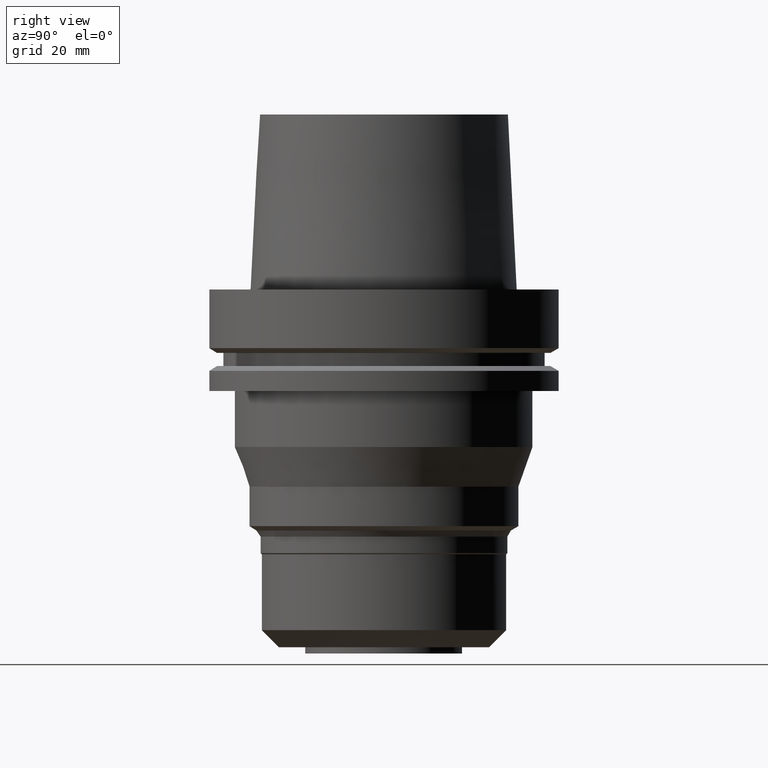
[diagram: clean part render]
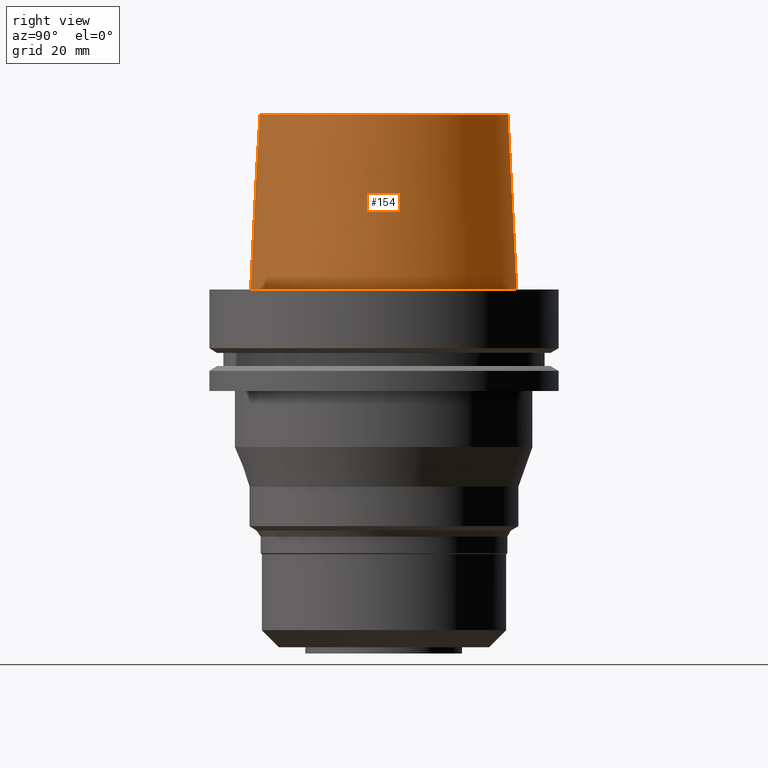
[diagram: same view with one face highlighted and labeled with its STEP entity id]
A machine part, right view. The second image highlights one B-rep face of the part: STEP entity #154.
In plain terms, the highlighted conical surface has half-angle 2.862 deg.
Its self-contained STEP definition (entity closure, byte-faithful):
#108=EDGE_CURVE('Unnamed[1]',#261,#261,#262,.T.);
#147=EDGE_CURVE('Unnamed[1]',#323,#323,#324,.T.);
#154=ADVANCED_FACE('Unnamed[1]',(#333,#334),#335,.T.);
#261=VERTEX_POINT('',#463);
#262=CIRCLE('',#464,37.9999999999349);
#323=VERTEX_POINT('',#540);
#324=CIRCLE('',#541,35.5000000015618);
#333=FACE_BOUND('',#553,.T.);
#334=FACE_BOUND('',#554,.T.);
#335=CONICAL_SURFACE('',#555,36.7500000007484,0.0499583956894843);
#463=CARTESIAN_POINT('',(-3.3636548776863E-032,37.9999999999349,-2.44634216324803E-015));
#464=AXIS2_PLACEMENT_3D('',#683,#684,#685);
#540=CARTESIAN_POINT('',(-3.06161699786838E-015,35.5000000015618,50.0));
#541=AXIS2_PLACEMENT_3D('',#754,#755,#756);
#553=EDGE_LOOP('',(#764));
#554=EDGE_LOOP('',(#765));
#555=AXIS2_PLACEMENT_3D('',#766,#767,#768);
#683=CARTESIAN_POINT('',(0.0,0.0,0.0));
#684=DIRECTION('',(6.12323399573677E-017,1.22464679914735E-016,-1.0));
#685=DIRECTION('',(-1.23259516440783E-032,1.0,1.22464679914735E-016));
#754=CARTESIAN_POINT('',(-3.06161699786838E-015,-6.12323399573676E-015,50.0));
#755=DIRECTION('',(6.12323399573677E-017,1.22464679914735E-016,-1.0));
#756=DIRECTION('',(-1.23259516440783E-032,1.0,1.22464679914735E-016));
#764=ORIENTED_EDGE('',*,*,#108,.F.);
#765=ORIENTED_EDGE('',*,*,#147,.T.);
#766=CARTESIAN_POINT('',(-1.53080849893419E-015,-3.06161699786838E-015,25.0));
#767=DIRECTION('',(6.12323399573676E-017,1.22464679914735E-016,-1.0));
#768=DIRECTION('',(-1.23259516440783E-032,1.0,1.22464679914735E-016));